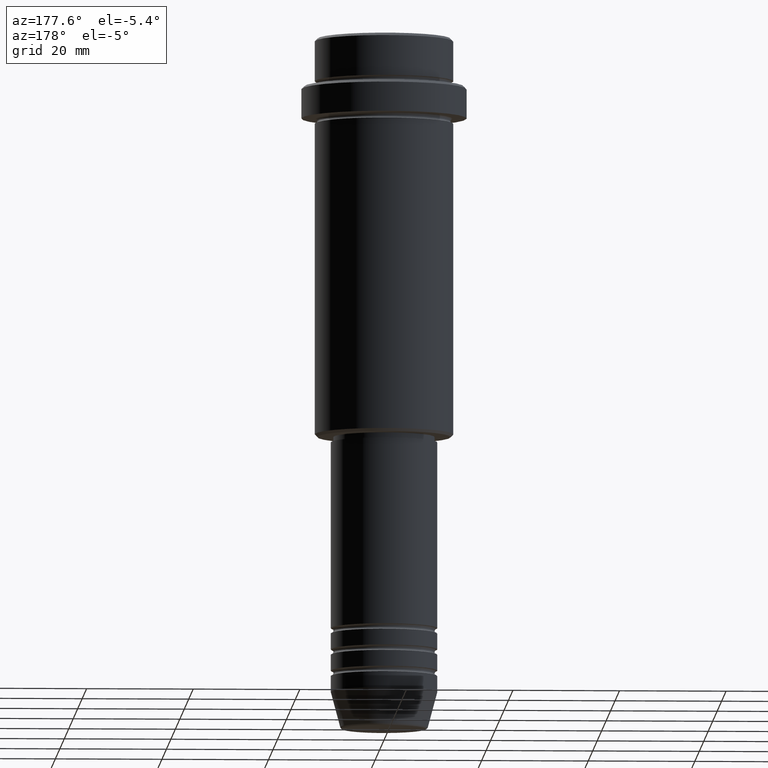
[diagram: clean part render]
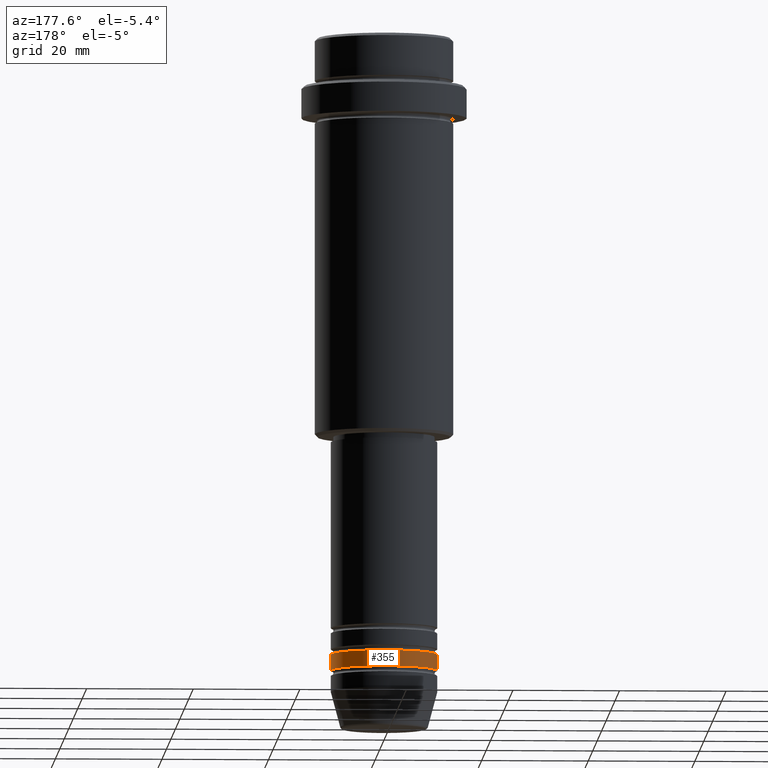
[diagram: same view with one face highlighted and labeled with its STEP entity id]
A machine part, auxiliary view. The second image highlights one B-rep face of the part: STEP entity #355.
In plain terms, the highlighted cylindrical surface (partial cylindrical patch) has radius 10 mm, axis along (-0, -0, 1).
Its self-contained STEP definition (entity closure, byte-faithful):
#29 = DIRECTION ( 'NONE',  ( -0.000000000000000000, -0.000000000000000000, 1.000000000000000000 ) ) ;
#35 = LINE ( 'NONE', #689, #769 ) ;
#44 = DIRECTION ( 'NONE',  ( 1.000000000000000000, 0.000000000000000000, 0.000000000000000000 ) ) ;
#192 = DIRECTION ( 'NONE',  ( -0.000000000000000000, -0.000000000000000000, 1.000000000000000000 ) ) ;
#193 = CARTESIAN_POINT ( 'NONE',  ( 10.00000000000000000, 0.000000000000000000, -118.9999999999998863 ) ) ;
#201 = EDGE_CURVE ( 'NONE', #1120, #294, #1292, .T. ) ;
#294 = VERTEX_POINT ( 'NONE', #1001 ) ;
#303 = CARTESIAN_POINT ( 'NONE',  ( 10.00000000000000000, 0.000000000000000000, -115.9999999999999005 ) ) ;
#355 = ADVANCED_FACE ( 'NONE', ( #1126 ), #588, .T. ) ;
#378 = ORIENTED_EDGE ( 'NONE', *, *, #201, .F. ) ;
#395 = EDGE_CURVE ( 'NONE', #473, #1120, #35, .T. ) ;
#421 = LINE ( 'NONE', #1293, #704 ) ;
#432 = CARTESIAN_POINT ( 'NONE',  ( -10.00000000000000000, 1.224646799147353256E-15, -118.9999999999998863 ) ) ;
#473 = VERTEX_POINT ( 'NONE', #193 ) ;
#499 = EDGE_LOOP ( 'NONE', ( #852, #1003, #378, #627 ) ) ;
#588 = CYLINDRICAL_SURFACE ( 'NONE', #794, 10.00000000000000000 ) ;
#627 = ORIENTED_EDGE ( 'NONE', *, *, #395, .F. ) ;
#689 = CARTESIAN_POINT ( 'NONE',  ( 10.00000000000000000, 0.000000000000000000, 0.000000000000000000 ) ) ;
#704 = VECTOR ( 'NONE', #192, 1000.000000000000000 ) ;
#711 = DIRECTION ( 'NONE',  ( -0.000000000000000000, -0.000000000000000000, 1.000000000000000000 ) ) ;
#769 = VECTOR ( 'NONE', #1122, 1000.000000000000000 ) ;
#794 = AXIS2_PLACEMENT_3D ( 'NONE', #1008, #29, #44 ) ;
#852 = ORIENTED_EDGE ( 'NONE', *, *, #939, .T. ) ;
#915 = DIRECTION ( 'NONE',  ( 1.000000000000000000, 0.000000000000000000, 0.000000000000000000 ) ) ;
#939 = EDGE_CURVE ( 'NONE', #473, #1052, #1109, .T. ) ;
#941 = CARTESIAN_POINT ( 'NONE',  ( 0.000000000000000000, 0.000000000000000000, -118.9999999999998863 ) ) ;
#1001 = CARTESIAN_POINT ( 'NONE',  ( -10.00000000000000000, 1.224646799147353256E-15, -115.9999999999999005 ) ) ;
#1003 = ORIENTED_EDGE ( 'NONE', *, *, #1118, .T. ) ;
#1008 = CARTESIAN_POINT ( 'NONE',  ( 0.000000000000000000, 0.000000000000000000, 0.000000000000000000 ) ) ;
#1052 = VERTEX_POINT ( 'NONE', #432 ) ;
#1076 = DIRECTION ( 'NONE',  ( -0.000000000000000000, -0.000000000000000000, 1.000000000000000000 ) ) ;
#1099 = DIRECTION ( 'NONE',  ( 1.000000000000000000, 0.000000000000000000, 0.000000000000000000 ) ) ;
#1109 = CIRCLE ( 'NONE', #1154, 10.00000000000000000 ) ;
#1118 = EDGE_CURVE ( 'NONE', #1052, #294, #421, .T. ) ;
#1120 = VERTEX_POINT ( 'NONE', #303 ) ;
#1122 = DIRECTION ( 'NONE',  ( -0.000000000000000000, -0.000000000000000000, 1.000000000000000000 ) ) ;
#1126 = FACE_OUTER_BOUND ( 'NONE', #499, .T. ) ;
#1154 = AXIS2_PLACEMENT_3D ( 'NONE', #941, #711, #915 ) ;
#1194 = AXIS2_PLACEMENT_3D ( 'NONE', #1389, #1076, #1099 ) ;
#1292 = CIRCLE ( 'NONE', #1194, 10.00000000000000000 ) ;
#1293 = CARTESIAN_POINT ( 'NONE',  ( -10.00000000000000000, 1.224646799147353256E-15, 0.000000000000000000 ) ) ;
#1389 = CARTESIAN_POINT ( 'NONE',  ( 0.000000000000000000, 0.000000000000000000, -115.9999999999999005 ) ) ;